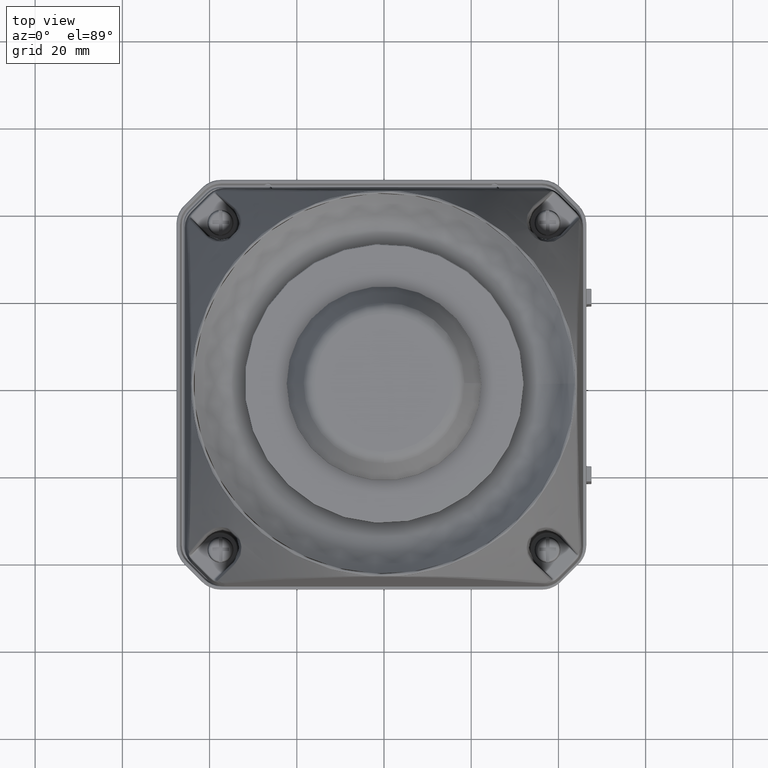
[diagram: clean part render]
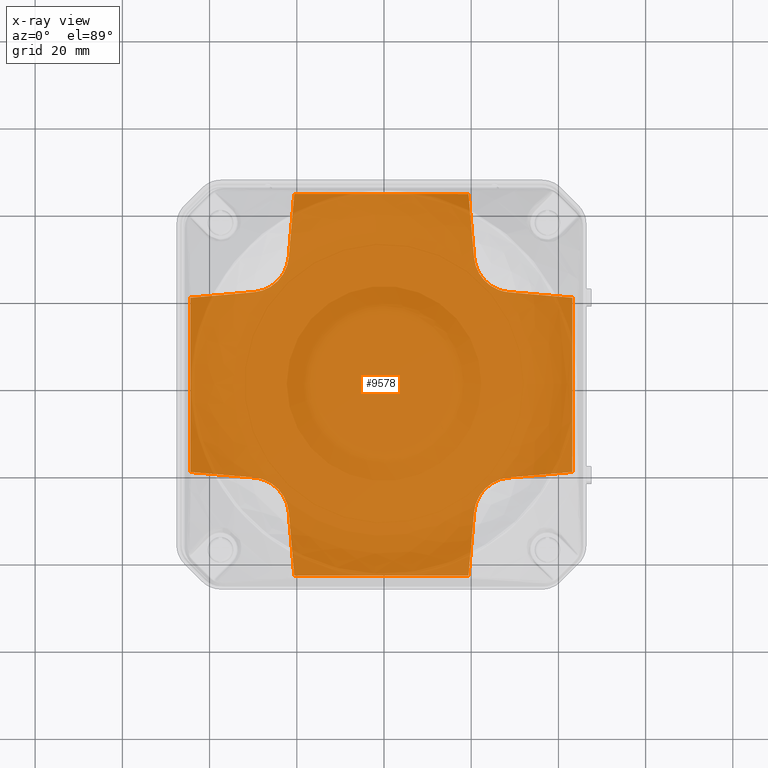
[diagram: x-ray — body ghosted, one internal face saturated and labeled with its STEP entity id]
A machine part, top view, then the same camera in x-ray: the body is ghosted and one INTERNAL B-rep face — a face not visible from any outside direction — is saturated and labeled: STEP entity #9578.
In plain terms, the highlighted face is a freeform B-spline surface patch.
Its self-contained STEP definition (entity closure, byte-faithful):
#60=B_SPLINE_SURFACE_WITH_KNOTS('',3,3,((#67793,#67794,#67795,#67796),(#67797,
#67798,#67799,#67800),(#67801,#67802,#67803,#67804),(#67805,#67806,#67807,
#67808)),.UNSPECIFIED.,.F.,.F.,.F.,(4,4),(4,4),(0.,1.),(0.,1.),.UNSPECIFIED.);
#2078=B_SPLINE_CURVE_WITH_KNOTS('',3,(#58174,#58175,#58176,#58177,#58178,
#58179,#58180,#58181,#58182,#58183,#58184,#58185,#58186,#58187),.UNSPECIFIED.,
 .F.,.F.,(4,2,2,2,2,2,4),(0.,0.125,0.249999999999999,0.499999999999999,0.625,
0.75,1.),.UNSPECIFIED.);
#2079=B_SPLINE_CURVE_WITH_KNOTS('',3,(#58190,#58191,#58192,#58193,#58194,
#58195),.UNSPECIFIED.,.F.,.F.,(4,2,4),(0.,0.5,1.),.UNSPECIFIED.);
#2080=B_SPLINE_CURVE_WITH_KNOTS('',3,(#58198,#58199,#58200,#58201,#58202,
#58203),.UNSPECIFIED.,.F.,.F.,(4,2,4),(0.,0.5,1.),.UNSPECIFIED.);
#2081=B_SPLINE_CURVE_WITH_KNOTS('',3,(#58206,#58207,#58208,#58209,#58210,
#58211,#58212,#58213,#58214,#58215,#58216,#58217,#58218,#58219),.UNSPECIFIED.,
 .F.,.F.,(4,2,2,2,2,2,4),(0.,0.125000000000001,0.250000000000001,0.500000000000001,
0.625000000000001,0.75,1.),.UNSPECIFIED.);
#5136=LINE('',#55841,#6827);
#5139=LINE('',#55847,#6830);
#5145=LINE('',#55859,#6836);
#5148=LINE('',#55865,#6839);
#5150=LINE('',#55869,#6841);
#5153=LINE('',#55875,#6844);
#5157=LINE('',#55883,#6848);
#5160=LINE('',#55889,#6851);
#5165=LINE('',#55899,#6856);
#5168=LINE('',#55905,#6859);
#5172=LINE('',#55913,#6863);
#5177=LINE('',#55923,#6868);
#6827=VECTOR('',#38684,1.);
#6830=VECTOR('',#38689,1.);
#6836=VECTOR('',#38701,1.);
#6839=VECTOR('',#38706,1.);
#6841=VECTOR('',#38710,1.);
#6844=VECTOR('',#38715,1.);
#6848=VECTOR('',#38723,1.);
#6851=VECTOR('',#38730,1.);
#6856=VECTOR('',#38739,1.);
#6859=VECTOR('',#38744,1.);
#6863=VECTOR('',#38752,1.);
#6868=VECTOR('',#38763,1.);
#9578=ADVANCED_FACE('',(#11591),#60,.F.);
#11591=FACE_OUTER_BOUND('',#13862,.T.);
#13862=EDGE_LOOP('',(#22565,#22566,#22567,#22568,#22569,#22570,#22571,#22572,
#22573,#22574,#22575,#22576,#22577,#22578,#22579,#22580));
#22565=ORIENTED_EDGE('',*,*,#27754,.T.);
#22566=ORIENTED_EDGE('',*,*,#27742,.T.);
#22567=ORIENTED_EDGE('',*,*,#27745,.F.);
#22568=ORIENTED_EDGE('',*,*,#28420,.F.);
#22569=ORIENTED_EDGE('',*,*,#27737,.F.);
#22570=ORIENTED_EDGE('',*,*,#27713,.T.);
#22571=ORIENTED_EDGE('',*,*,#27716,.T.);
#22572=ORIENTED_EDGE('',*,*,#28422,.T.);
#22573=ORIENTED_EDGE('',*,*,#27722,.T.);
#22574=ORIENTED_EDGE('',*,*,#27725,.T.);
#22575=ORIENTED_EDGE('',*,*,#27734,.F.);
#22576=ORIENTED_EDGE('',*,*,#28421,.F.);
#22577=ORIENTED_EDGE('',*,*,#27727,.F.);
#22578=ORIENTED_EDGE('',*,*,#27730,.T.);
#22579=ORIENTED_EDGE('',*,*,#27749,.T.);
#22580=ORIENTED_EDGE('',*,*,#28419,.T.);
#24476=VERTEX_POINT('',#55840);
#24477=VERTEX_POINT('',#55842);
#24478=VERTEX_POINT('',#55846);
#24481=VERTEX_POINT('',#55858);
#24482=VERTEX_POINT('',#55860);
#24483=VERTEX_POINT('',#55864);
#24484=VERTEX_POINT('',#55868);
#24485=VERTEX_POINT('',#55870);
#24486=VERTEX_POINT('',#55874);
#24488=VERTEX_POINT('',#55882);
#24490=VERTEX_POINT('',#55890);
#24492=VERTEX_POINT('',#55898);
#24493=VERTEX_POINT('',#55900);
#24494=VERTEX_POINT('',#55904);
#24496=VERTEX_POINT('',#55912);
#24499=VERTEX_POINT('',#55924);
#27713=EDGE_CURVE('',#24477,#24476,#5136,.T.);
#27716=EDGE_CURVE('',#24476,#24478,#5139,.T.);
#27722=EDGE_CURVE('',#24482,#24481,#5145,.T.);
#27725=EDGE_CURVE('',#24481,#24483,#5148,.T.);
#27727=EDGE_CURVE('',#24484,#24485,#5150,.T.);
#27730=EDGE_CURVE('',#24484,#24486,#5153,.T.);
#27734=EDGE_CURVE('',#24488,#24483,#5157,.T.);
#27737=EDGE_CURVE('',#24477,#24490,#5160,.T.);
#27742=EDGE_CURVE('',#24493,#24492,#5165,.T.);
#27745=EDGE_CURVE('',#24494,#24492,#5168,.T.);
#27749=EDGE_CURVE('',#24486,#24496,#5172,.T.);
#27754=EDGE_CURVE('',#24499,#24493,#5177,.T.);
#28419=EDGE_CURVE('',#24496,#24499,#2078,.T.);
#28420=EDGE_CURVE('',#24490,#24494,#2079,.T.);
#28421=EDGE_CURVE('',#24485,#24488,#2080,.T.);
#28422=EDGE_CURVE('',#24478,#24482,#2081,.T.);
#38684=DIRECTION('',(1.,0.,0.));
#38689=DIRECTION('',(0.0871557427476581,0.996194698091746,0.));
#38701=DIRECTION('',(0.996194698091746,0.0871557427476585,0.));
#38706=DIRECTION('',(0.,1.,0.));
#38710=DIRECTION('',(0.0871557427476581,-0.996194698091746,0.));
#38715=DIRECTION('',(-1.,0.,0.));
#38723=DIRECTION('',(0.996194698091746,-0.0871557427476585,0.));
#38730=DIRECTION('',(-0.0871557427476581,0.996194698091746,0.));
#38739=DIRECTION('',(0.,-1.,0.));
#38744=DIRECTION('',(-0.996194698091746,0.0871557427476585,0.));
#38752=DIRECTION('',(-0.0871557427476581,-0.996194698091746,0.));
#38763=DIRECTION('',(-0.996194698091746,-0.0871557427476585,0.));
#55840=CARTESIAN_POINT('',(19.3791182697117,-43.2,-82.5));
#55841=CARTESIAN_POINT('',(-37.3750216637944,-43.2,-82.5));
#55842=CARTESIAN_POINT('',(-20.5817429296175,-43.185,-82.515));
#55846=CARTESIAN_POINT('',(20.6534105507545,-28.6347725786756,-82.5));
#55847=CARTESIAN_POINT('',(20.6534105507545,-28.6347725786756,-82.5));
#55858=CARTESIAN_POINT('',(43.185,-19.3817429296174,-82.515));
#55859=CARTESIAN_POINT('',(28.6347725786756,-20.6534105507545,-82.5));
#55860=CARTESIAN_POINT('',(28.6347725786756,-20.6534105507545,-82.5));
#55864=CARTESIAN_POINT('',(43.2,20.5791182697117,-82.5));
#55865=CARTESIAN_POINT('',(43.2,-36.1750216637944,-82.5));
#55868=CARTESIAN_POINT('',(19.3817429296175,44.385,-82.515));
#55869=CARTESIAN_POINT('',(20.6534105507545,29.8347725786756,-82.5));
#55870=CARTESIAN_POINT('',(20.6534105507545,29.8347725786756,-82.5));
#55874=CARTESIAN_POINT('',(-20.5791182697117,44.4,-82.5));
#55875=CARTESIAN_POINT('',(36.1750216637944,44.4,-82.5));
#55882=CARTESIAN_POINT('',(28.6347725786756,21.8534105507545,-82.5));
#55883=CARTESIAN_POINT('',(28.6347725786756,21.8534105507545,-82.5));
#55889=CARTESIAN_POINT('',(-21.8534105507545,-28.6347725786756,-82.5));
#55890=CARTESIAN_POINT('',(-21.8534105507545,-28.6347725786756,-82.5));
#55898=CARTESIAN_POINT('',(-44.4,-19.3791182697117,-82.5));
#55899=CARTESIAN_POINT('',(-44.4,37.3750216637944,-82.5));
#55900=CARTESIAN_POINT('',(-44.385,20.5817429296175,-82.515));
#55904=CARTESIAN_POINT('',(-29.8347725786756,-20.6534105507545,-82.5));
#55905=CARTESIAN_POINT('',(-29.8347725786756,-20.6534105507545,-82.5));
#55912=CARTESIAN_POINT('',(-21.8534105507545,29.8347725786756,-82.5));
#55913=CARTESIAN_POINT('',(-21.8534105507545,29.8347725786756,-82.5));
#55923=CARTESIAN_POINT('',(-29.8347725786756,21.8534105507545,-82.5));
#55924=CARTESIAN_POINT('',(-29.8347725786756,21.8534105507545,-82.5));
#58174=CARTESIAN_POINT('',(-21.8534105507545,29.8347725786756,-82.5));
#58175=CARTESIAN_POINT('',(-21.8970077320067,29.337089684725,-82.5));
#58176=CARTESIAN_POINT('',(-21.9812231636058,28.8500905467386,-82.5));
#58177=CARTESIAN_POINT('',(-22.2308905274978,27.8974597826942,-82.5));
#58178=CARTESIAN_POINT('',(-22.3827320748296,27.4618762478733,-82.5));
#58179=CARTESIAN_POINT('',(-23.0417737776327,26.0068883638801,-82.5));
#58180=CARTESIAN_POINT('',(-23.6386811248452,25.1446182837037,-82.5));
#58181=CARTESIAN_POINT('',(-24.7680631293506,24.0150945499213,-82.5));
#58182=CARTESIAN_POINT('',(-25.1717332822149,23.6777414427283,-82.5));
#58183=CARTESIAN_POINT('',(-26.0334925573349,23.0813448364778,-82.5));
#58184=CARTESIAN_POINT('',(-26.5221146327823,22.8084668628611,-82.5));
#58185=CARTESIAN_POINT('',(-27.8864115940622,22.1903042015696,-82.5));
#58186=CARTESIAN_POINT('',(-28.8390423581066,21.9406368376775,-82.5));
#58187=CARTESIAN_POINT('',(-29.8347725786756,21.8534105507545,-82.5));
#58190=CARTESIAN_POINT('',(-21.8534105507545,-28.6347725786756,-82.5));
#58191=CARTESIAN_POINT('',(-22.0314870578032,-26.5993487892152,-82.5));
#58192=CARTESIAN_POINT('',(-22.946842750181,-24.6363621721833,-82.5));
#58193=CARTESIAN_POINT('',(-25.8363621721833,-21.746842750181,-82.5));
#58194=CARTESIAN_POINT('',(-27.7993487892152,-20.8314870578032,-82.5));
#58195=CARTESIAN_POINT('',(-29.8347725786756,-20.6534105507545,-82.5));
#58198=CARTESIAN_POINT('',(20.6534105507545,29.8347725786756,-82.5));
#58199=CARTESIAN_POINT('',(20.8314870578032,27.7993487892152,-82.5));
#58200=CARTESIAN_POINT('',(21.746842750181,25.8363621721833,-82.5));
#58201=CARTESIAN_POINT('',(24.6363621721833,22.946842750181,-82.5));
#58202=CARTESIAN_POINT('',(26.5993487892152,22.0314870578032,-82.5));
#58203=CARTESIAN_POINT('',(28.6347725786756,21.8534105507545,-82.5));
#58206=CARTESIAN_POINT('',(20.6534105507545,-28.6347725786756,-82.5));
#58207=CARTESIAN_POINT('',(20.6970077320081,-28.1370896847085,-82.5));
#58208=CARTESIAN_POINT('',(20.7812231636079,-27.6500905467139,-82.5));
#58209=CARTESIAN_POINT('',(21.0308905275,-26.6974597826694,-82.5));
#58210=CARTESIAN_POINT('',(21.1827320748185,-26.2618762478836,-82.5));
#58211=CARTESIAN_POINT('',(21.8417737776548,-24.8068883638596,-82.5));
#58212=CARTESIAN_POINT('',(22.4386811248488,-23.9446182837017,-82.5));
#58213=CARTESIAN_POINT('',(23.5680631293488,-22.8150945499223,-82.5));
#58214=CARTESIAN_POINT('',(23.9717332822121,-22.4777414427298,-82.5));
#58215=CARTESIAN_POINT('',(24.8334925573321,-21.8813448364793,-82.5));
#58216=CARTESIAN_POINT('',(25.3221146327827,-21.6084668628611,-82.5));
#58217=CARTESIAN_POINT('',(26.6864115940612,-20.9903042015696,-82.5));
#58218=CARTESIAN_POINT('',(27.6390423581057,-20.7406368376776,-82.5));
#58219=CARTESIAN_POINT('',(28.6347725786756,-20.6534105507545,-82.5));
#67793=CARTESIAN_POINT('',(-70.7570300966829,-25.6029699033172,-82.5));
#67794=CARTESIAN_POINT('',(-38.6370300966829,-40.2543233011057,-82.5));
#67795=CARTESIAN_POINT('',(-6.51703009670057,-54.9056766988862,-82.5));
#67796=CARTESIAN_POINT('',(25.6029699033172,-69.5570300966829,-82.5));
#67797=CARTESIAN_POINT('',(-56.1056766988943,6.51703009668286,-82.5));
#67798=CARTESIAN_POINT('',(-23.9856766988943,-8.13432330110571,-82.5));
#67799=CARTESIAN_POINT('',(8.134323301088,-22.7856766988862,-82.5));
#67800=CARTESIAN_POINT('',(40.2543233011057,-37.4370300966828,-82.5));
#67801=CARTESIAN_POINT('',(-41.4543233011138,38.6370300966651,-82.5));
#67802=CARTESIAN_POINT('',(-9.33432330111383,23.9856766988766,-82.5));
#67803=CARTESIAN_POINT('',(22.7856766988685,9.33432330109609,-82.5));
#67804=CARTESIAN_POINT('',(54.9056766988862,-5.31703009670055,-82.5));
#67805=CARTESIAN_POINT('',(-26.8029699033172,70.7570300966829,-82.5));
#67806=CARTESIAN_POINT('',(5.31703009668283,56.1056766988943,-82.5));
#67807=CARTESIAN_POINT('',(37.4370300966651,41.4543233011138,-82.5));
#67808=CARTESIAN_POINT('',(69.5570300966828,26.8029699033172,-82.5));